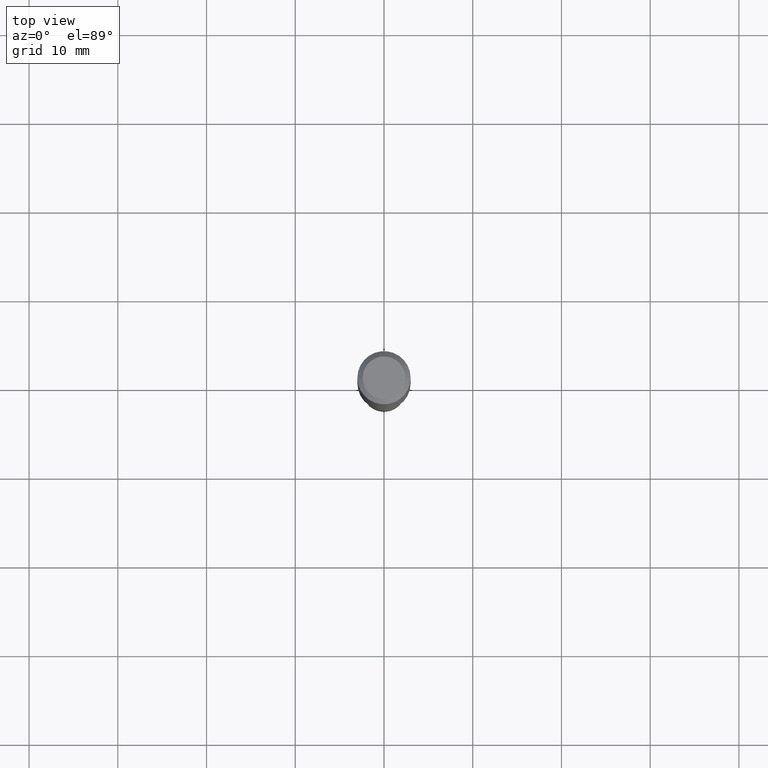
[diagram: clean part render]
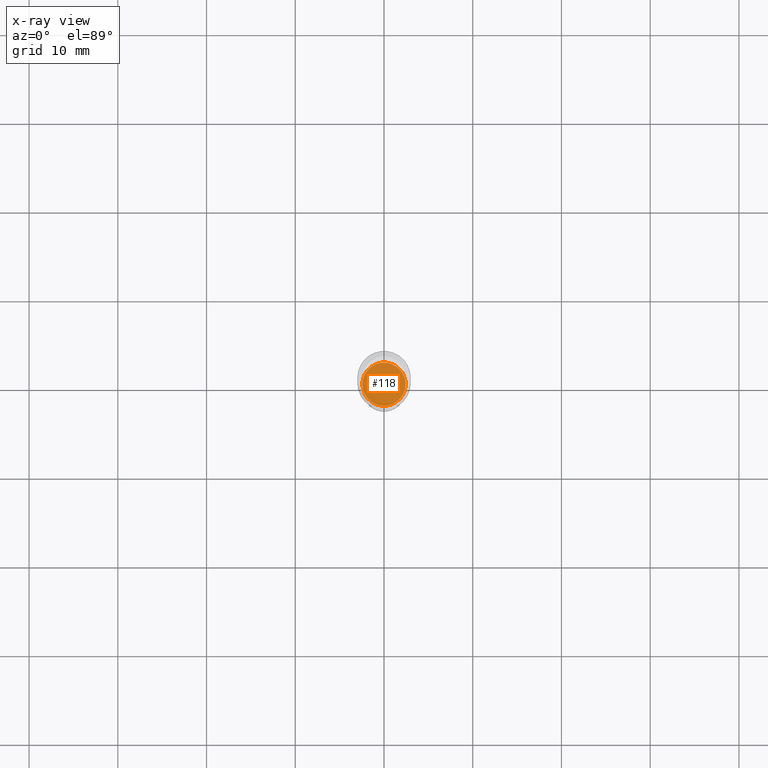
[diagram: x-ray — body ghosted, one internal face saturated and labeled with its STEP entity id]
A machine part, top view, then the same camera in x-ray: the body is ghosted and one INTERNAL B-rep face — a face not visible from any outside direction — is saturated and labeled: STEP entity #118.
In plain terms, the highlighted planar face has unit normal (-0, 0, 1).
Its self-contained STEP definition (entity closure, byte-faithful):
#16 = CIRCLE ( 'NONE', #297, 0.09594999999999997975 ) ;
#84 = ORIENTED_EDGE ( 'NONE', *, *, #461, .F. ) ;
#96 = CARTESIAN_POINT ( 'NONE',  ( -0.09594999999999997975, -5.212347851036261861E-15, -1.688900000000000068 ) ) ;
#118 = ADVANCED_FACE ( 'NONE', ( #471 ), #324, .F. ) ;
#127 = VERTEX_POINT ( 'NONE', #96 ) ;
#130 = VERTEX_POINT ( 'NONE', #390 ) ;
#135 = DIRECTION ( 'NONE',  ( -2.438088387897960049E-29, 3.491481338843145188E-15, 1.000000000000000000 ) ) ;
#143 = DIRECTION ( 'NONE',  ( -2.445468806185136597E-29, 3.491481338843145583E-15, 1.000000000000000000 ) ) ;
#146 = DIRECTION ( 'NONE',  ( 1.000000000000000000, -6.982962677686269866E-15, 0.000000000000000000 ) ) ;
#185 = DIRECTION ( 'NONE',  ( 1.000000000000000000, -6.982962677686269866E-15, 0.000000000000000000 ) ) ;
#260 = CIRCLE ( 'NONE', #465, 0.09594999999999997975 ) ;
#285 = DIRECTION ( 'NONE',  ( 1.000000000000000000, -6.982962677686265922E-15, 4.876176775795935793E-29 ) ) ;
#291 = CARTESIAN_POINT ( 'NONE',  ( 4.130152266766077627E-29, -5.896762833172189046E-15, -1.688900000000000068 ) ) ;
#297 = AXIS2_PLACEMENT_3D ( 'NONE', #408, #412, #146 ) ;
#324 = PLANE ( 'NONE',  #386 ) ;
#325 = EDGE_LOOP ( 'NONE', ( #84, #434 ) ) ;
#339 = EDGE_CURVE ( 'NONE', #127, #130, #260, .T. ) ;
#386 = AXIS2_PLACEMENT_3D ( 'NONE', #291, #135, #285 ) ;
#390 = CARTESIAN_POINT ( 'NONE',  ( 0.09594999999999997975, -6.566778102096186571E-15, -1.688900000000000068 ) ) ;
#401 = CARTESIAN_POINT ( 'NONE',  ( 4.130152266766077627E-29, -5.896762833172189046E-15, -1.688900000000000068 ) ) ;
#408 = CARTESIAN_POINT ( 'NONE',  ( 4.130152266766077627E-29, -5.896762833172189046E-15, -1.688900000000000068 ) ) ;
#412 = DIRECTION ( 'NONE',  ( -2.445468806185136597E-29, 3.491481338843145583E-15, 1.000000000000000000 ) ) ;
#434 = ORIENTED_EDGE ( 'NONE', *, *, #339, .F. ) ;
#461 = EDGE_CURVE ( 'NONE', #130, #127, #16, .T. ) ;
#465 = AXIS2_PLACEMENT_3D ( 'NONE', #401, #143, #185 ) ;
#471 = FACE_OUTER_BOUND ( 'NONE', #325, .T. ) ;